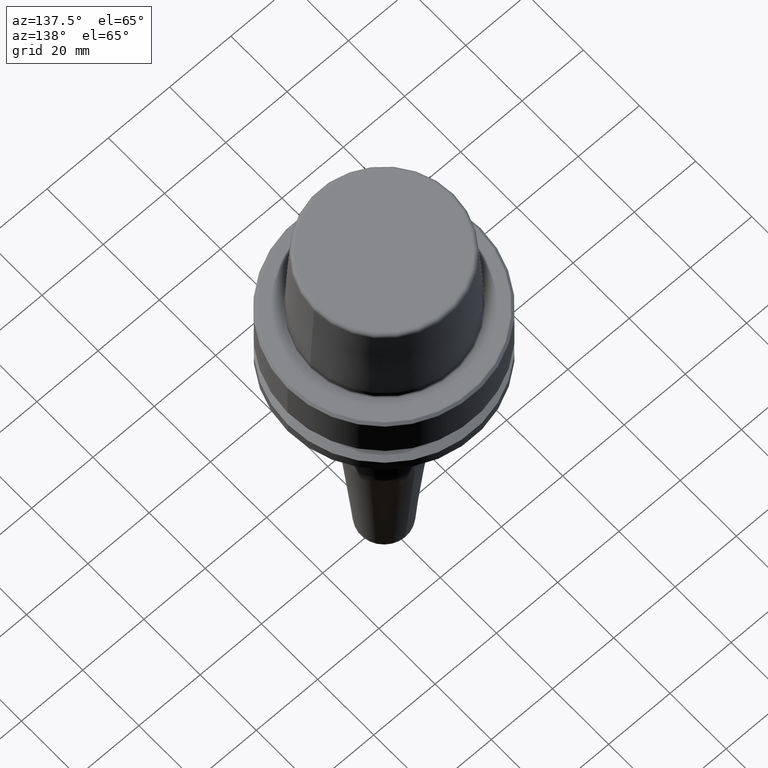
[diagram: clean part render]
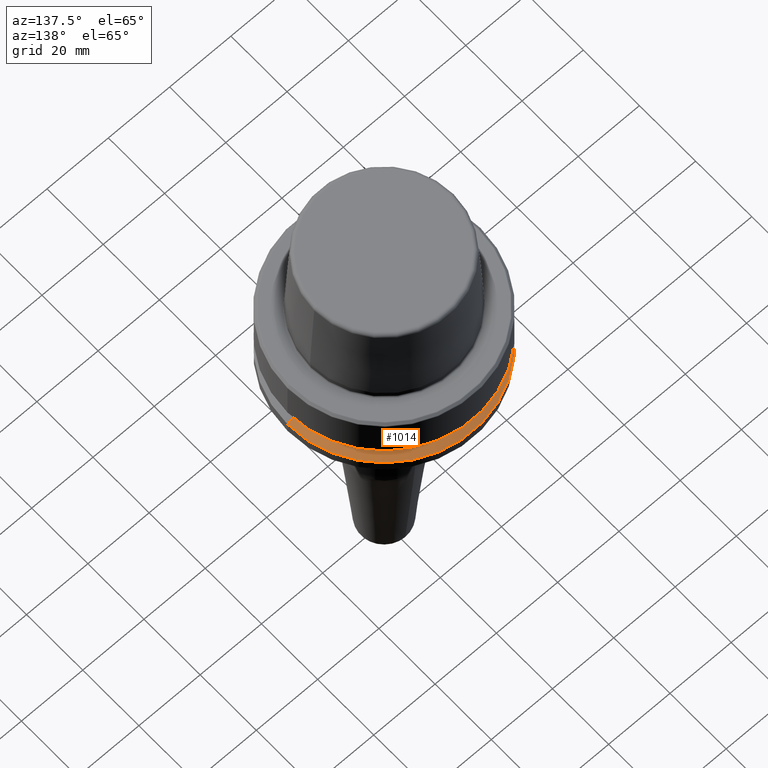
[diagram: same view with one face highlighted and labeled with its STEP entity id]
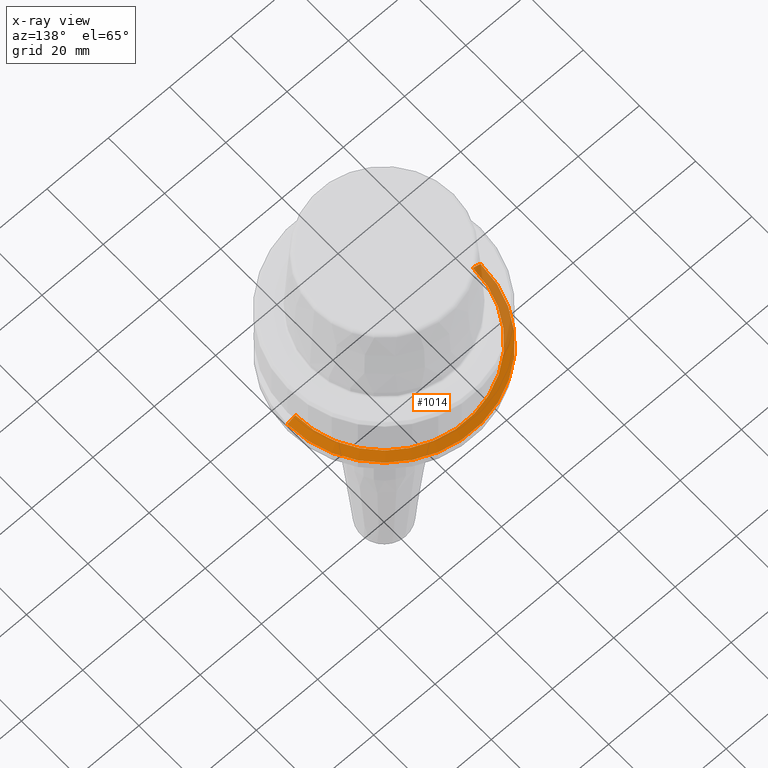
[diagram: x-ray of the same camera — body ghosted, the highlighted face saturated]
A machine part, auxiliary view. The second image highlights one B-rep face of the part: STEP entity #1014.
The next image is the same camera in x-ray: the body ghosted, the highlighted face saturated — about 19% of this face is hidden behind the body in this view.
In plain terms, the highlighted conical surface has half-angle 60 deg.
Its self-contained STEP definition (entity closure, byte-faithful):
#7 = CIRCLE ( 'NONE', #487, 31.50000000000000000 ) ;
#13 = DIRECTION ( 'NONE',  ( 1.000000000000000000, 0.0000000000000000000, 0.0000000000000000000 ) ) ;
#30 = EDGE_CURVE ( 'NONE', #795, #741, #147, .T. ) ;
#65 = CARTESIAN_POINT ( 'NONE',  ( -31.50000000000000000, 0.0000000000000000000, -21.37749907475931700 ) ) ;
#137 = DIRECTION ( 'NONE',  ( -0.0000000000000000000, -0.0000000000000000000, 1.000000000000000000 ) ) ;
#147 = CIRCLE ( 'NONE', #186, 28.94089653438085100 ) ;
#174 = CARTESIAN_POINT ( 'NONE',  ( 0.0000000000000000000, 0.0000000000000000000, -21.37749907475931700 ) ) ;
#186 = AXIS2_PLACEMENT_3D ( 'NONE', #820, #137, #13 ) ;
#196 = LINE ( 'NONE', #342, #657 ) ;
#251 = CARTESIAN_POINT ( 'NONE',  ( 31.50000000000000000, 0.0000000000000000000, -21.37749907475931700 ) ) ;
#271 = DIRECTION ( 'NONE',  ( 1.000000000000000000, 0.0000000000000000000, 0.0000000000000000000 ) ) ;
#272 = FACE_OUTER_BOUND ( 'NONE', #639, .T. ) ;
#274 = DIRECTION ( 'NONE',  ( 0.0000000000000000000, 0.0000000000000000000, -1.000000000000000000 ) ) ;
#328 = VECTOR ( 'NONE', #754, 1000.000000000000100 ) ;
#332 = CARTESIAN_POINT ( 'NONE',  ( 28.94089653438085100, 3.700937523921292900E-015, -19.90000000000001600 ) ) ;
#342 = CARTESIAN_POINT ( 'NONE',  ( 31.50000000000000000, 3.857637417314162700E-015, -21.37749907475931700 ) ) ;
#360 = ORIENTED_EDGE ( 'NONE', *, *, #934, .F. ) ;
#376 = CARTESIAN_POINT ( 'NONE',  ( 0.0000000000000000000, 0.0000000000000000000, -21.37749907475931700 ) ) ;
#426 = CARTESIAN_POINT ( 'NONE',  ( -31.50000000000000000, 3.857637417314162700E-015, -21.37749907475931700 ) ) ;
#432 = CARTESIAN_POINT ( 'NONE',  ( -28.94089653438085100, 0.0000000000000000000, -19.90000000000001600 ) ) ;
#484 = ORIENTED_EDGE ( 'NONE', *, *, #30, .F. ) ;
#487 = AXIS2_PLACEMENT_3D ( 'NONE', #174, #859, #271 ) ;
#639 = EDGE_LOOP ( 'NONE', ( #484, #935, #847, #360 ) ) ;
#657 = VECTOR ( 'NONE', #832, 1000.000000000000100 ) ;
#741 = VERTEX_POINT ( 'NONE', #432 ) ;
#754 = DIRECTION ( 'NONE',  ( -0.8660254037844410400, 0.0000000000000000000, -0.4999999999999958400 ) ) ;
#779 = VERTEX_POINT ( 'NONE', #426 ) ;
#795 = VERTEX_POINT ( 'NONE', #332 ) ;
#820 = CARTESIAN_POINT ( 'NONE',  ( 0.0000000000000000000, 0.0000000000000000000, -19.90000000000001600 ) ) ;
#822 = LINE ( 'NONE', #65, #328 ) ;
#832 = DIRECTION ( 'NONE',  ( 0.8660254037844410400, 1.060575238724909700E-016, -0.4999999999999958400 ) ) ;
#834 = EDGE_CURVE ( 'NONE', #795, #851, #196, .T. ) ;
#847 = ORIENTED_EDGE ( 'NONE', *, *, #984, .T. ) ;
#851 = VERTEX_POINT ( 'NONE', #251 ) ;
#859 = DIRECTION ( 'NONE',  ( -0.0000000000000000000, -0.0000000000000000000, 1.000000000000000000 ) ) ;
#934 = EDGE_CURVE ( 'NONE', #741, #779, #822, .T. ) ;
#935 = ORIENTED_EDGE ( 'NONE', *, *, #834, .T. ) ;
#953 = DIRECTION ( 'NONE',  ( -1.000000000000000000, 0.0000000000000000000, 0.0000000000000000000 ) ) ;
#984 = EDGE_CURVE ( 'NONE', #851, #779, #7, .T. ) ;
#1014 = ADVANCED_FACE ( 'NONE', ( #272 ), #1209, .T. ) ;
#1063 = AXIS2_PLACEMENT_3D ( 'NONE', #376, #274, #953 ) ;
#1209 = CONICAL_SURFACE ( 'NONE', #1063, 31.50000000000000000, 1.047197551196602500 ) ;